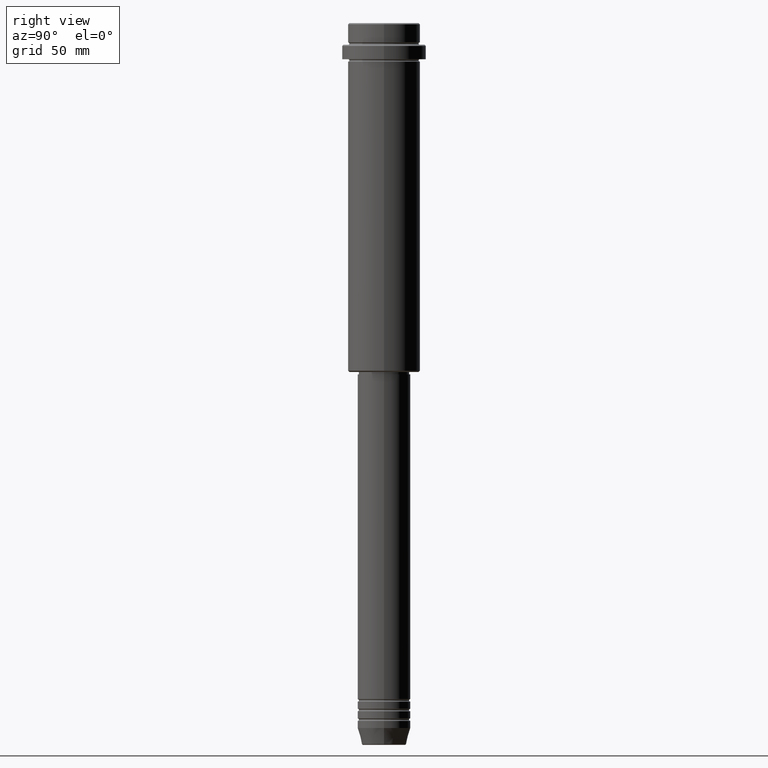
[diagram: clean part render]
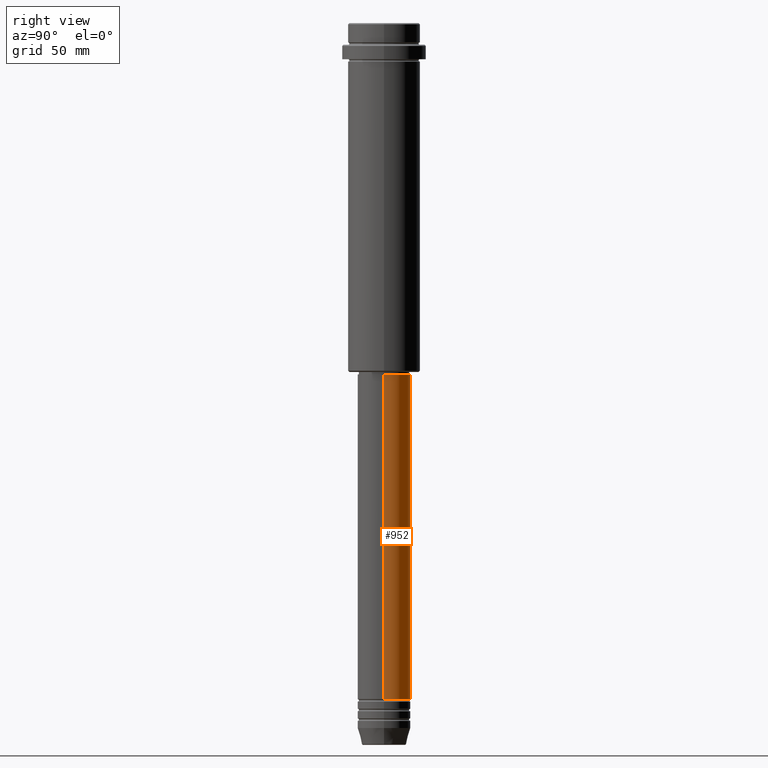
[diagram: same view with one face highlighted and labeled with its STEP entity id]
A machine part, right view. The second image highlights one B-rep face of the part: STEP entity #952.
In plain terms, the highlighted cylindrical surface (edge-blend (fillet) strip) has radius 11 mm, axis along (-0, -0, 1).
Its self-contained STEP definition (entity closure, byte-faithful):
#47 = CIRCLE ( 'NONE', #118, 11.00000000000000000 ) ;
#80 = CARTESIAN_POINT ( 'NONE',  ( 10.99999999999999822, 0.000000000000000000, -145.9999999999999432 ) ) ;
#106 = ORIENTED_EDGE ( 'NONE', *, *, #581, .F. ) ;
#118 = AXIS2_PLACEMENT_3D ( 'NONE', #846, #610, #1274 ) ;
#160 = DIRECTION ( 'NONE',  ( -0.000000000000000000, -0.000000000000000000, 1.000000000000000000 ) ) ;
#215 = EDGE_CURVE ( 'NONE', #421, #569, #668, .T. ) ;
#319 = EDGE_LOOP ( 'NONE', ( #1299, #473, #106, #1065 ) ) ;
#383 = VERTEX_POINT ( 'NONE', #80 ) ;
#421 = VERTEX_POINT ( 'NONE', #518 ) ;
#462 = CARTESIAN_POINT ( 'NONE',  ( -10.99999999999999822, 1.347111479062088207E-15, -145.9999999999999432 ) ) ;
#473 = ORIENTED_EDGE ( 'NONE', *, *, #215, .T. ) ;
#495 = EDGE_CURVE ( 'NONE', #888, #421, #47, .T. ) ;
#512 = EDGE_CURVE ( 'NONE', #888, #383, #1245, .T. ) ;
#518 = CARTESIAN_POINT ( 'NONE',  ( -11.00000000000000000, 1.347111479062088405E-15, -280.9999999999999432 ) ) ;
#534 = CIRCLE ( 'NONE', #724, 10.99999999999999822 ) ;
#569 = VERTEX_POINT ( 'NONE', #462 ) ;
#581 = EDGE_CURVE ( 'NONE', #383, #569, #534, .T. ) ;
#604 = VECTOR ( 'NONE', #160, 1000.000000000000000 ) ;
#610 = DIRECTION ( 'NONE',  ( -0.000000000000000000, -0.000000000000000000, 1.000000000000000000 ) ) ;
#627 = CARTESIAN_POINT ( 'NONE',  ( -11.00000000000000000, 1.347111479062088405E-15, 0.000000000000000000 ) ) ;
#668 = LINE ( 'NONE', #627, #678 ) ;
#678 = VECTOR ( 'NONE', #1089, 1000.000000000000000 ) ;
#702 = AXIS2_PLACEMENT_3D ( 'NONE', #1056, #1381, #842 ) ;
#724 = AXIS2_PLACEMENT_3D ( 'NONE', #1000, #1333, #982 ) ;
#842 = DIRECTION ( 'NONE',  ( 1.000000000000000000, 0.000000000000000000, 0.000000000000000000 ) ) ;
#846 = CARTESIAN_POINT ( 'NONE',  ( 0.000000000000000000, 0.000000000000000000, -280.9999999999999432 ) ) ;
#888 = VERTEX_POINT ( 'NONE', #1177 ) ;
#943 = CYLINDRICAL_SURFACE ( 'NONE', #702, 11.00000000000000000 ) ;
#952 = ADVANCED_FACE ( 'NONE', ( #1242 ), #943, .T. ) ;
#982 = DIRECTION ( 'NONE',  ( 1.000000000000000000, 0.000000000000000000, 0.000000000000000000 ) ) ;
#1000 = CARTESIAN_POINT ( 'NONE',  ( 0.000000000000000000, 0.000000000000000000, -145.9999999999999432 ) ) ;
#1040 = CARTESIAN_POINT ( 'NONE',  ( 11.00000000000000000, 0.000000000000000000, 0.000000000000000000 ) ) ;
#1056 = CARTESIAN_POINT ( 'NONE',  ( 0.000000000000000000, 0.000000000000000000, 0.000000000000000000 ) ) ;
#1065 = ORIENTED_EDGE ( 'NONE', *, *, #512, .F. ) ;
#1089 = DIRECTION ( 'NONE',  ( -0.000000000000000000, -0.000000000000000000, 1.000000000000000000 ) ) ;
#1177 = CARTESIAN_POINT ( 'NONE',  ( 11.00000000000000000, 0.000000000000000000, -280.9999999999999432 ) ) ;
#1242 = FACE_OUTER_BOUND ( 'NONE', #319, .T. ) ;
#1245 = LINE ( 'NONE', #1040, #604 ) ;
#1274 = DIRECTION ( 'NONE',  ( 1.000000000000000000, 0.000000000000000000, 0.000000000000000000 ) ) ;
#1299 = ORIENTED_EDGE ( 'NONE', *, *, #495, .T. ) ;
#1333 = DIRECTION ( 'NONE',  ( -0.000000000000000000, -0.000000000000000000, 1.000000000000000000 ) ) ;
#1381 = DIRECTION ( 'NONE',  ( -0.000000000000000000, -0.000000000000000000, 1.000000000000000000 ) ) ;